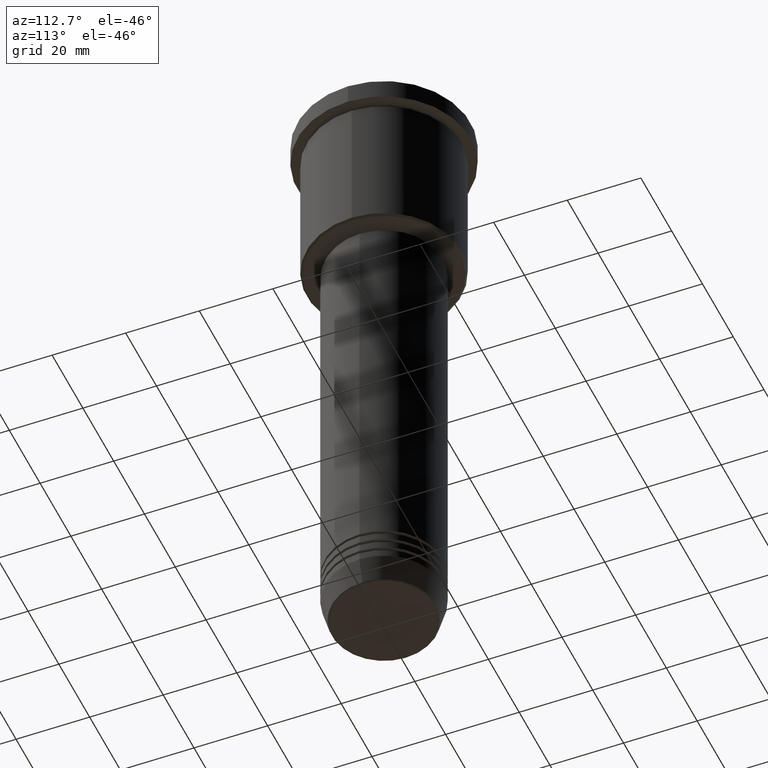
[diagram: clean part render]
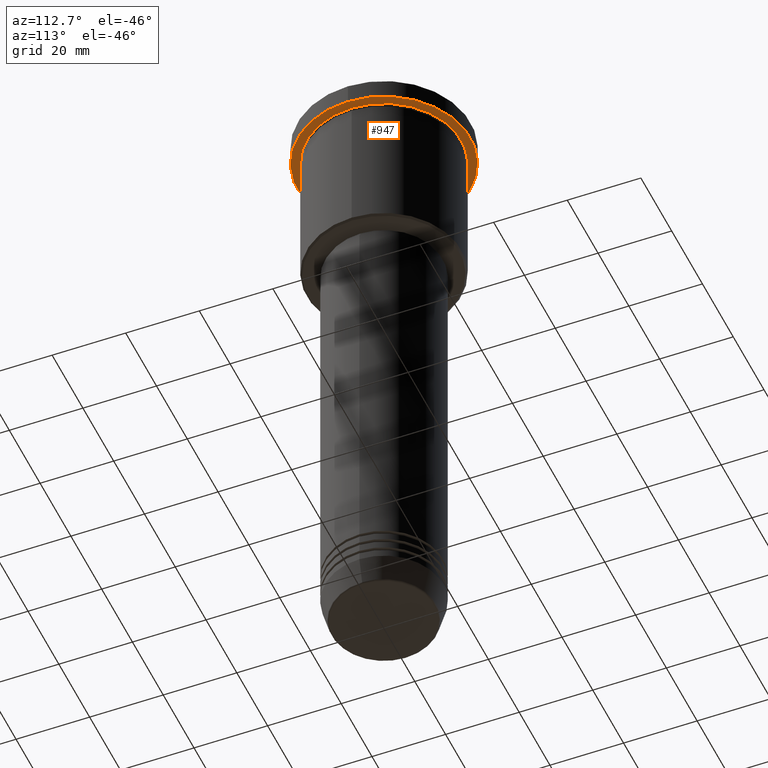
[diagram: same view with one face highlighted and labeled with its STEP entity id]
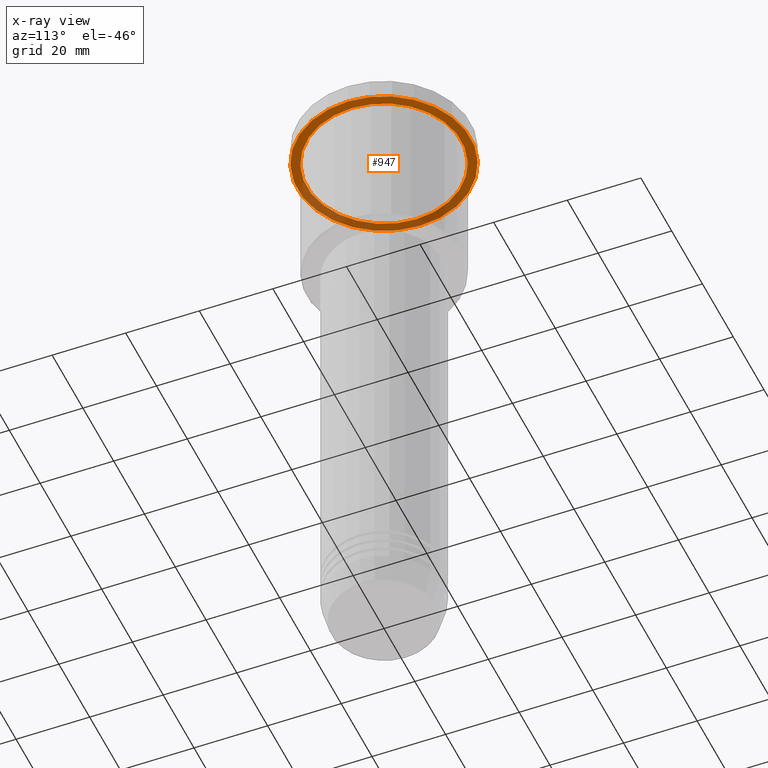
[diagram: x-ray of the same camera — body ghosted, the highlighted face saturated]
A machine part, auxiliary view. The second image highlights one B-rep face of the part: STEP entity #947.
The next image is the same camera in x-ray: the body ghosted, the highlighted face saturated — about 38% of this face is hidden behind the body in this view.
In plain terms, the highlighted planar face has unit normal (0, 0, -1).
Its self-contained STEP definition (entity closure, byte-faithful):
#43 = ORIENTED_EDGE ( 'NONE', *, *, #62, .F. ) ;
#62 = EDGE_CURVE ( 'NONE', #603, #608, #958, .T. ) ;
#107 = EDGE_LOOP ( 'NONE', ( #426, #43 ) ) ;
#119 = AXIS2_PLACEMENT_3D ( 'NONE', #759, #1124, #741 ) ;
#133 = EDGE_CURVE ( 'NONE', #241, #210, #341, .T. ) ;
#204 = DIRECTION ( 'NONE',  ( 1.000000000000000000, 0.000000000000000000, 0.000000000000000000 ) ) ;
#210 = VERTEX_POINT ( 'NONE', #868 ) ;
#232 = EDGE_CURVE ( 'NONE', #608, #603, #1148, .T. ) ;
#241 = VERTEX_POINT ( 'NONE', #486 ) ;
#281 = CARTESIAN_POINT ( 'NONE',  ( 23.50000000000000000, 0.000000000000000000, -5.999999999999994671 ) ) ;
#334 = FACE_BOUND ( 'NONE', #848, .T. ) ;
#341 = CIRCLE ( 'NONE', #977, 21.00000000000000000 ) ;
#426 = ORIENTED_EDGE ( 'NONE', *, *, #232, .F. ) ;
#431 = AXIS2_PLACEMENT_3D ( 'NONE', #1178, #720, #629 ) ;
#486 = CARTESIAN_POINT ( 'NONE',  ( 21.00000000000000000, 2.571758278209441661E-15, -5.999999999999994671 ) ) ;
#492 = DIRECTION ( 'NONE',  ( -1.000000000000000000, 0.000000000000000000, 0.000000000000000000 ) ) ;
#523 = CARTESIAN_POINT ( 'NONE',  ( 0.000000000000000000, 23.50000000000000000, -5.999999999999994671 ) ) ;
#603 = VERTEX_POINT ( 'NONE', #815 ) ;
#608 = VERTEX_POINT ( 'NONE', #281 ) ;
#629 = DIRECTION ( 'NONE',  ( 1.000000000000000000, 0.000000000000000000, 0.000000000000000000 ) ) ;
#665 = CARTESIAN_POINT ( 'NONE',  ( 0.000000000000000000, 0.000000000000000000, -5.999999999999994671 ) ) ;
#706 = AXIS2_PLACEMENT_3D ( 'NONE', #523, #1077, #786 ) ;
#720 = DIRECTION ( 'NONE',  ( -0.000000000000000000, -0.000000000000000000, 1.000000000000000000 ) ) ;
#741 = DIRECTION ( 'NONE',  ( -1.000000000000000000, 0.000000000000000000, 0.000000000000000000 ) ) ;
#759 = CARTESIAN_POINT ( 'NONE',  ( 0.000000000000000000, 0.000000000000000000, -5.999999999999994671 ) ) ;
#780 = ORIENTED_EDGE ( 'NONE', *, *, #133, .T. ) ;
#786 = DIRECTION ( 'NONE',  ( -1.000000000000000000, 0.000000000000000000, -0.000000000000000000 ) ) ;
#807 = CIRCLE ( 'NONE', #119, 21.00000000000000000 ) ;
#815 = CARTESIAN_POINT ( 'NONE',  ( -23.50000000000000000, 2.877919977996280320E-15, -5.999999999999994671 ) ) ;
#848 = EDGE_LOOP ( 'NONE', ( #931, #780 ) ) ;
#854 = CARTESIAN_POINT ( 'NONE',  ( 0.000000000000000000, 0.000000000000000000, -5.999999999999994671 ) ) ;
#868 = CARTESIAN_POINT ( 'NONE',  ( -21.00000000000000000, 0.000000000000000000, -5.999999999999994671 ) ) ;
#931 = ORIENTED_EDGE ( 'NONE', *, *, #1155, .T. ) ;
#937 = AXIS2_PLACEMENT_3D ( 'NONE', #665, #1026, #204 ) ;
#947 = ADVANCED_FACE ( 'NONE', ( #334, #1150 ), #1072, .T. ) ;
#958 = CIRCLE ( 'NONE', #431, 23.50000000000000000 ) ;
#977 = AXIS2_PLACEMENT_3D ( 'NONE', #854, #1134, #492 ) ;
#1026 = DIRECTION ( 'NONE',  ( -0.000000000000000000, -0.000000000000000000, 1.000000000000000000 ) ) ;
#1072 = PLANE ( 'NONE',  #706 ) ;
#1077 = DIRECTION ( 'NONE',  ( 0.000000000000000000, 0.000000000000000000, -1.000000000000000000 ) ) ;
#1124 = DIRECTION ( 'NONE',  ( -0.000000000000000000, -0.000000000000000000, 1.000000000000000000 ) ) ;
#1134 = DIRECTION ( 'NONE',  ( -0.000000000000000000, -0.000000000000000000, 1.000000000000000000 ) ) ;
#1148 = CIRCLE ( 'NONE', #937, 23.50000000000000000 ) ;
#1150 = FACE_OUTER_BOUND ( 'NONE', #107, .T. ) ;
#1155 = EDGE_CURVE ( 'NONE', #210, #241, #807, .T. ) ;
#1178 = CARTESIAN_POINT ( 'NONE',  ( 0.000000000000000000, 0.000000000000000000, -5.999999999999994671 ) ) ;